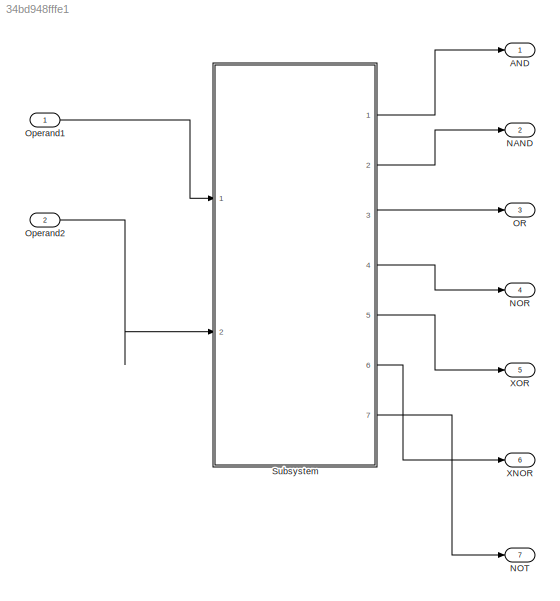
MODEL slx_34bd948fffe1
KIND model
CONFIG AbsTol = auto
CONFIG EnableMultiTasking = off
CONFIG FixedStep = auto
CONFIG MaxStep = auto
CONFIG MinStep = auto
CONFIG RelTol = 1e-3
CONFIG SampleTimeConstraint = Unconstrained
CONFIG Solver = FixedStepDiscrete
CONFIG SolverName = FixedStepDiscrete
CONFIG StartTime = 0.0
CONFIG StopTime = 10.0
BLOCK [Outport] AND
  IconDisplay = Port number
  OutDataTypeStr = uint8
BLOCK [Outport] NAND
  IconDisplay = Port number
  OutDataTypeStr = uint8
  Port = 2
BLOCK [Outport] NOR
  IconDisplay = Port number
  OutDataTypeStr = uint8
  Port = 4
BLOCK [Outport] NOT
  IconDisplay = Port number
  OutDataTypeStr = uint8
  Port = 7
BLOCK [Outport] OR
  IconDisplay = Port number
  OutDataTypeStr = uint8
  Port = 3
BLOCK [Inport] Operand1
  IconDisplay = Port number
  OutDataTypeStr = uint8
BLOCK [Inport] Operand2
  IconDisplay = Port number
  OutDataTypeStr = uint8
  Port = 2
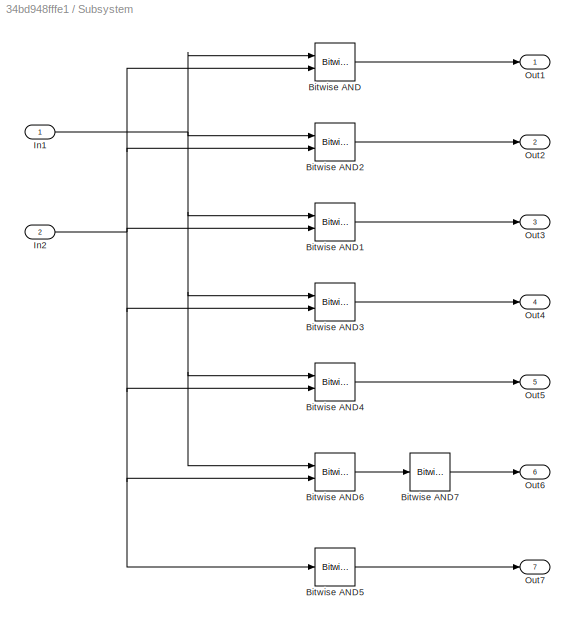
BLOCK [SubSystem] Subsystem
  Ports = [2, 7]
  RequestExecContextInheritance = off
  Variant = off
BLOCK [Reference] Subsystem/Bitwise AND  REF=simulink/Logic and Bit
Operations/Bitwise
Operator
  Ports = [2, 1]
  SourceBlock = simulink/Logic and Bit\nOperations/Bitwise\nOperator
  SourceType = Bitwise Operator
BLOCK [Reference] Subsystem/Bitwise AND1  REF=simulink/Logic and Bit
Operations/Bitwise
Operator
  Ports = [2, 1]
  SourceBlock = simulink/Logic and Bit\nOperations/Bitwise\nOperator
  SourceType = Bitwise Operator
BLOCK [Reference] Subsystem/Bitwise AND2  REF=simulink/Logic and Bit
Operations/Bitwise
Operator
  Ports = [2, 1]
  SourceBlock = simulink/Logic and Bit\nOperations/Bitwise\nOperator
  SourceType = Bitwise Operator
BLOCK [Reference] Subsystem/Bitwise AND3  REF=simulink/Logic and Bit
Operations/Bitwise
Operator
  Ports = [2, 1]
  SourceBlock = simulink/Logic and Bit\nOperations/Bitwise\nOperator
  SourceType = Bitwise Operator
BLOCK [Reference] Subsystem/Bitwise AND4  REF=simulink/Logic and Bit
Operations/Bitwise
Operator
  Ports = [2, 1]
  SourceBlock = simulink/Logic and Bit\nOperations/Bitwise\nOperator
  SourceType = Bitwise Operator
BLOCK [Reference] Subsystem/Bitwise AND5  REF=simulink/Logic and Bit
Operations/Bitwise
Operator
  Ports = [1, 1]
  SourceBlock = simulink/Logic and Bit\nOperations/Bitwise\nOperator
  SourceType = Bitwise Operator
BLOCK [Reference] Subsystem/Bitwise AND6  REF=simulink/Logic and Bit
Operations/Bitwise
Operator
  Ports = [2, 1]
  SourceBlock = simulink/Logic and Bit\nOperations/Bitwise\nOperator
  SourceType = Bitwise Operator
BLOCK [Reference] Subsystem/Bitwise AND7  REF=simulink/Logic and Bit
Operations/Bitwise
Operator
  Ports = [1, 1]
  SourceBlock = simulink/Logic and Bit\nOperations/Bitwise\nOperator
  SourceType = Bitwise Operator
BLOCK [Inport] Subsystem/In1
  IconDisplay = Port number
BLOCK [Inport] Subsystem/In2
  IconDisplay = Port number
  Port = 2
BLOCK [Outport] Subsystem/Out1
  IconDisplay = Port number
BLOCK [Outport] Subsystem/Out2
  IconDisplay = Port number
  Port = 2
BLOCK [Outport] Subsystem/Out3
  IconDisplay = Port number
  Port = 3
BLOCK [Outport] Subsystem/Out4
  IconDisplay = Port number
  Port = 4
BLOCK [Outport] Subsystem/Out5
  IconDisplay = Port number
  Port = 5
BLOCK [Outport] Subsystem/Out6
  IconDisplay = Port number
  Port = 6
BLOCK [Outport] Subsystem/Out7
  IconDisplay = Port number
  Port = 7
BLOCK [Outport] XNOR
  IconDisplay = Port number
  OutDataTypeStr = uint8
  Port = 6
BLOCK [Outport] XOR
  IconDisplay = Port number
  OutDataTypeStr = uint8
  Port = 5
LINE Operand1:1 -> Subsystem:1
LINE Operand2:1 -> Subsystem:2
LINE Subsystem/Bitwise AND1:1 -> Subsystem/Out3:1
LINE Subsystem/Bitwise AND2:1 -> Subsystem/Out2:1
LINE Subsystem/Bitwise AND3:1 -> Subsystem/Out4:1
LINE Subsystem/Bitwise AND4:1 -> Subsystem/Out5:1
LINE Subsystem/Bitwise AND5:1 -> Subsystem/Out7:1
LINE Subsystem/Bitwise AND6:1 -> Subsystem/Bitwise AND7:1
LINE Subsystem/Bitwise AND7:1 -> Subsystem/Out6:1
LINE Subsystem/Bitwise AND:1 -> Subsystem/Out1:1
NET Subsystem/In1:1 -> Subsystem/Bitwise AND1:1, Subsystem/Bitwise AND2:1, Subsystem/Bitwise AND3:1, Subsystem/Bitwise AND4:1, Subsystem/Bitwise AND6:1, Subsystem/Bitwise AND:1
NET Subsystem/In2:1 -> Subsystem/Bitwise AND1:2, Subsystem/Bitwise AND2:2, Subsystem/Bitwise AND3:2, Subsystem/Bitwise AND4:2, Subsystem/Bitwise AND5:1, Subsystem/Bitwise AND6:2, Subsystem/Bitwise AND:2
LINE Subsystem:1 -> AND:1
LINE Subsystem:2 -> NAND:1
LINE Subsystem:3 -> OR:1
LINE Subsystem:4 -> NOR:1
LINE Subsystem:5 -> XOR:1
LINE Subsystem:6 -> XNOR:1
LINE Subsystem:7 -> NOT:1
note: NET lines group one-source signal fan-out (src -> all destinations, sorted); 1:1 wires keep LINE
